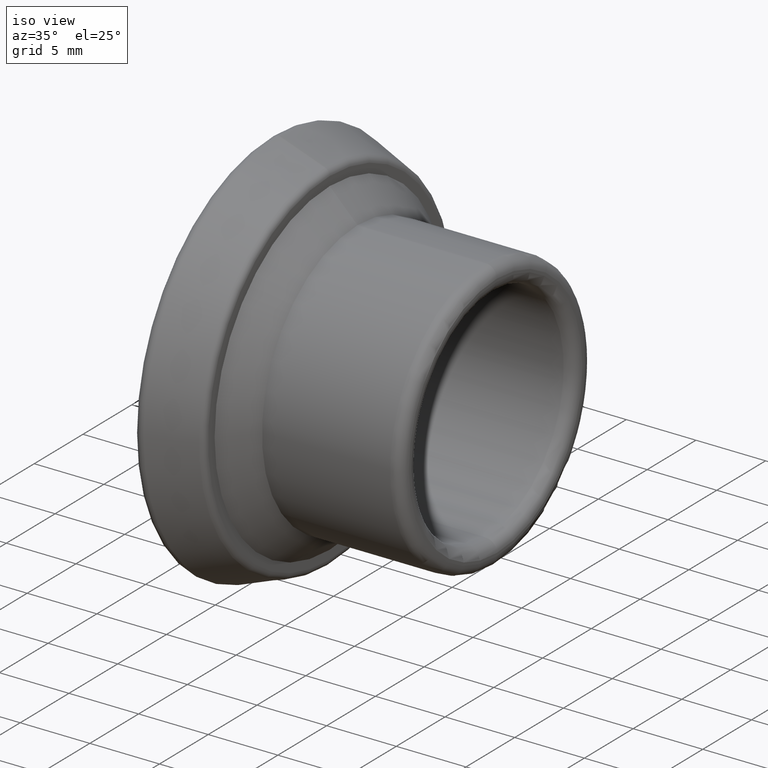
[diagram: clean part render]
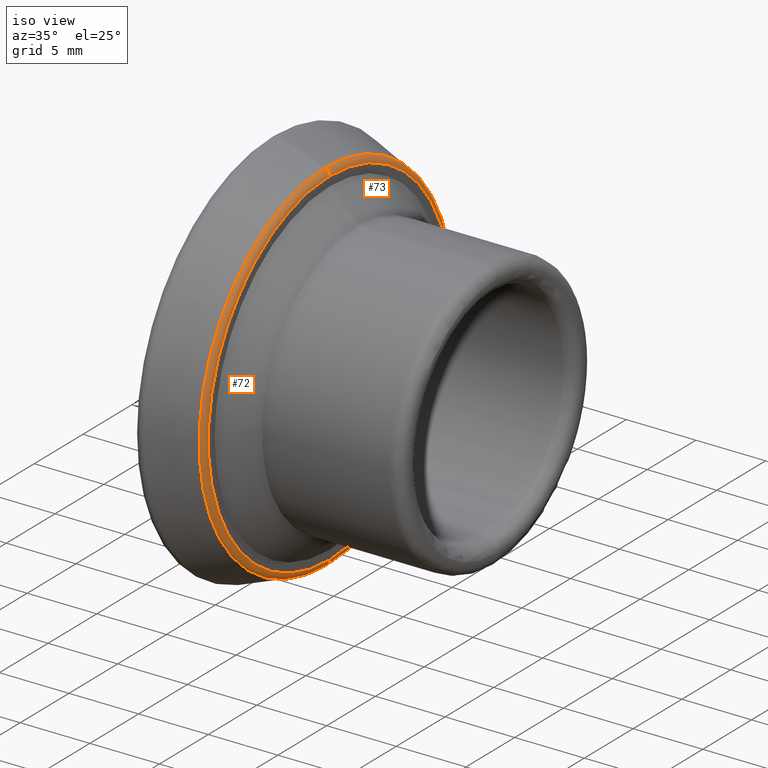
[diagram: same view with one multi-face feature highlighted, each face labeled with its STEP entity id]
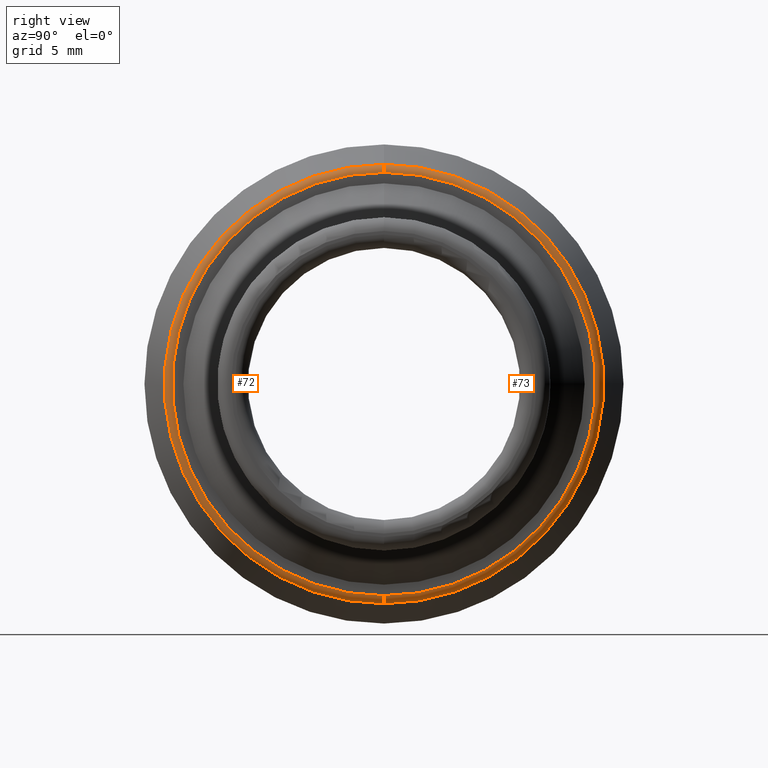
[diagram: same view with one multi-face feature highlighted, each face labeled with its STEP entity id]
A machine part, iso view. The highlighted faces form ONE feature: a constant-radius fillet chain: 2 tangent blend faces with common blend radius 0.5 mm. The faces share edges in the B-rep.
A second angle (right view) of the same feature is appended — it is thin or edge-on in the first view.
Their STEP definitions:
[1] entity #73 (Torus):
#38=TOROIDAL_SURFACE('',#528,12.4476404018815,0.5);
#73=ADVANCED_FACE('',(#102),#38,.T.);
#102=FACE_OUTER_BOUND('',#137,.F.);
#137=EDGE_LOOP('',(#250,#251,#252,#253));
#250=ORIENTED_EDGE('',*,*,#345,.F.);
#251=ORIENTED_EDGE('',*,*,#313,.F.);
#252=ORIENTED_EDGE('',*,*,#346,.T.);
#253=ORIENTED_EDGE('',*,*,#289,.T.);
#289=EDGE_CURVE('',#424,#423,#347,.T.);
#313=EDGE_CURVE('',#408,#407,#367,.T.);
#345=EDGE_CURVE('',#407,#423,#391,.T.);
#346=EDGE_CURVE('',#408,#424,#392,.T.);
#347=CIRCLE('',#454,12.4476404018815);
#367=CIRCLE('',#474,12.9185113576789);
#391=CIRCLE('',#498,0.5);
#392=CIRCLE('',#499,0.5);
#407=VERTEX_POINT('',#717);
#408=VERTEX_POINT('',#718);
#423=VERTEX_POINT('',#733);
#424=VERTEX_POINT('',#734);
#454=AXIS2_PLACEMENT_3D('',#735,#535,#536);
#474=AXIS2_PLACEMENT_3D('',#759,#579,#580);
#498=AXIS2_PLACEMENT_3D('',#791,#635,#636);
#499=AXIS2_PLACEMENT_3D('',#792,#637,#638);
#528=AXIS2_PLACEMENT_3D('',#821,#695,#696);
#535=DIRECTION('',(1.,0.,0.));
#536=DIRECTION('',(0.,0.,-1.));
#579=DIRECTION('',(1.,0.,0.));
#580=DIRECTION('',(0.,0.,-1.));
#635=DIRECTION('',(0.,1.,0.));
#636=DIRECTION('',(0.336336396998149,0.,0.94174191159484));
#637=DIRECTION('',(0.,-1.,0.));
#638=DIRECTION('',(0.336336396998162,0.,-0.941741911594835));
#695=DIRECTION('',(1.,0.,0.));
#696=DIRECTION('',(0.,0.,-1.));
#717=CARTESIAN_POINT('',(54.3831682115982,-49.9999958811694,12.9185112305017));
#718=CARTESIAN_POINT('',(54.3831682115982,-49.9999958811694,-12.9185114848561));
#733=CARTESIAN_POINT('',(54.7150000130991,-49.9999958811694,12.4476402747043));
#734=CARTESIAN_POINT('',(54.7150000130991,-49.9999958811694,-12.4476405290587));
#735=CARTESIAN_POINT('',(54.7150000130991,-49.9999958811694,-1.271772005328E-07));
#759=CARTESIAN_POINT('',(54.3831682115982,-49.9999958811694,-1.27177200553119E-07));
#791=CARTESIAN_POINT('',(54.2150000130991,-49.9999958811694,12.4476402747043));
#792=CARTESIAN_POINT('',(54.2150000130991,-49.9999958811694,-12.4476405290587));
#821=CARTESIAN_POINT('',(54.2150000130991,-49.9999958811694,-1.27177200563416E-07));
[2] entity #72 (Torus):
#37=TOROIDAL_SURFACE('',#527,12.4476404018815,0.5);
#72=ADVANCED_FACE('',(#101),#37,.T.);
#101=FACE_OUTER_BOUND('',#136,.F.);
#136=EDGE_LOOP('',(#246,#247,#248,#249));
#246=ORIENTED_EDGE('',*,*,#346,.F.);
#247=ORIENTED_EDGE('',*,*,#314,.F.);
#248=ORIENTED_EDGE('',*,*,#345,.T.);
#249=ORIENTED_EDGE('',*,*,#290,.T.);
#290=EDGE_CURVE('',#423,#424,#348,.T.);
#314=EDGE_CURVE('',#407,#408,#368,.T.);
#345=EDGE_CURVE('',#407,#423,#391,.T.);
#346=EDGE_CURVE('',#408,#424,#392,.T.);
#348=CIRCLE('',#455,12.4476404018815);
#368=CIRCLE('',#475,12.9185113576789);
#391=CIRCLE('',#498,0.5);
#392=CIRCLE('',#499,0.5);
#407=VERTEX_POINT('',#717);
#408=VERTEX_POINT('',#718);
#423=VERTEX_POINT('',#733);
#424=VERTEX_POINT('',#734);
#455=AXIS2_PLACEMENT_3D('',#736,#537,#538);
#475=AXIS2_PLACEMENT_3D('',#760,#581,#582);
#498=AXIS2_PLACEMENT_3D('',#791,#635,#636);
#499=AXIS2_PLACEMENT_3D('',#792,#637,#638);
#527=AXIS2_PLACEMENT_3D('',#820,#693,#694);
#537=DIRECTION('',(1.,0.,0.));
#538=DIRECTION('',(0.,0.,1.));
#581=DIRECTION('',(1.,0.,0.));
#582=DIRECTION('',(0.,0.,1.));
#635=DIRECTION('',(0.,1.,0.));
#636=DIRECTION('',(0.336336396998149,0.,0.94174191159484));
#637=DIRECTION('',(0.,-1.,0.));
#638=DIRECTION('',(0.336336396998162,0.,-0.941741911594835));
#693=DIRECTION('',(1.,0.,0.));
#694=DIRECTION('',(0.,0.,1.));
#717=CARTESIAN_POINT('',(54.3831682115982,-49.9999958811694,12.9185112305017));
#718=CARTESIAN_POINT('',(54.3831682115982,-49.9999958811694,-12.9185114848561));
#733=CARTESIAN_POINT('',(54.7150000130991,-49.9999958811694,12.4476402747043));
#734=CARTESIAN_POINT('',(54.7150000130991,-49.9999958811694,-12.4476405290587));
#736=CARTESIAN_POINT('',(54.7150000130991,-49.9999958811694,-1.271772005328E-07));
#760=CARTESIAN_POINT('',(54.3831682115982,-49.9999958811694,-1.27177200553119E-07));
#791=CARTESIAN_POINT('',(54.2150000130991,-49.9999958811694,12.4476402747043));
#792=CARTESIAN_POINT('',(54.2150000130991,-49.9999958811694,-12.4476405290587));
#820=CARTESIAN_POINT('',(54.2150000130991,-49.9999958811694,-1.27177200563416E-07));